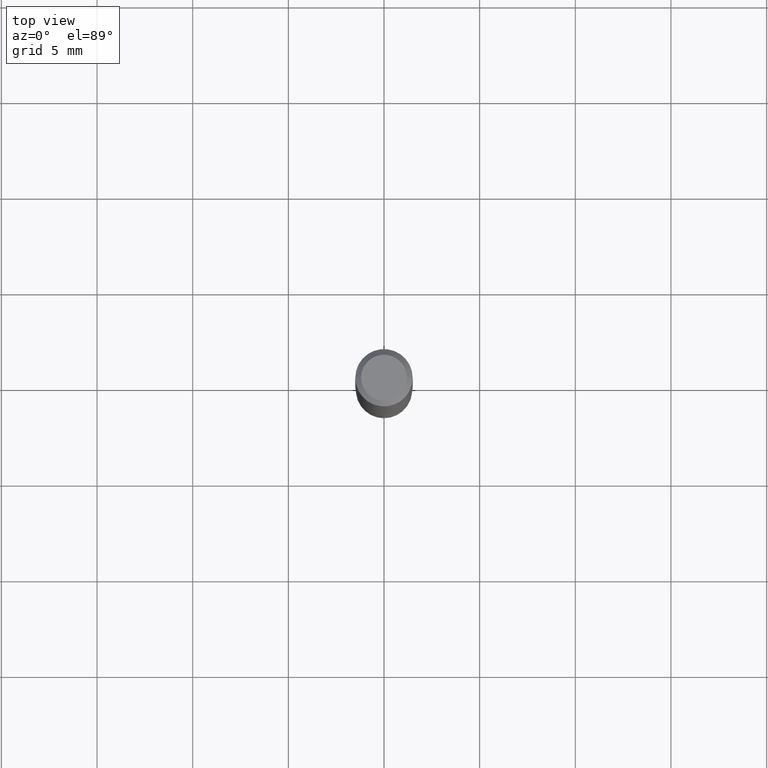
[diagram: clean part render]
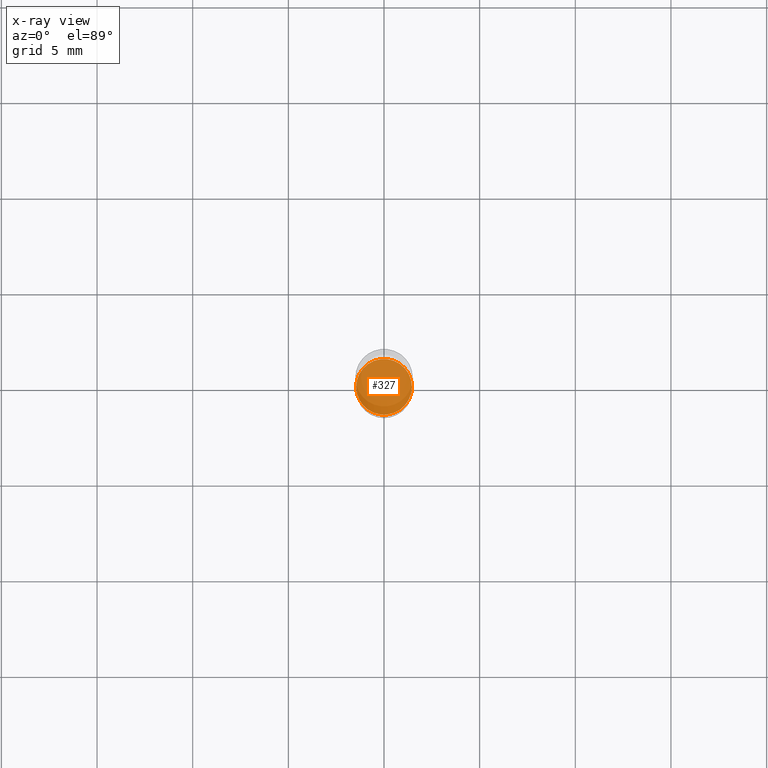
[diagram: x-ray — body ghosted, one internal face saturated and labeled with its STEP entity id]
A machine part, top view, then the same camera in x-ray: the body is ghosted and one INTERNAL B-rep face — a face not visible from any outside direction — is saturated and labeled: STEP entity #327.
In plain terms, the highlighted planar face has unit normal (-0, 0, 1).
Its self-contained STEP definition (entity closure, byte-faithful):
#7 = CARTESIAN_POINT ( 'NONE',  ( 2.676565608369632355E-29, -3.821426325363822773E-15, -1.094500000000000028 ) ) ;
#10 = CARTESIAN_POINT ( 'NONE',  ( 0.05734999999999999820, -4.221899234929130680E-15, -1.094500000000000028 ) ) ;
#15 = CIRCLE ( 'NONE', #374, 0.05734999999999999820 ) ;
#48 = DIRECTION ( 'NONE',  ( 1.000000000000000000, -6.982962677686264344E-15, 0.000000000000000000 ) ) ;
#63 = AXIS2_PLACEMENT_3D ( 'NONE', #205, #467, #48 ) ;
#66 = EDGE_LOOP ( 'NONE', ( #483, #184 ) ) ;
#74 = DIRECTION ( 'NONE',  ( 1.000000000000000000, -6.982962677686264344E-15, 0.000000000000000000 ) ) ;
#124 = CARTESIAN_POINT ( 'NONE',  ( 8.562420094366031687E-30, -6.428233325420959968E-15, -1.094500000000000028 ) ) ;
#184 = ORIENTED_EDGE ( 'NONE', *, *, #429, .F. ) ;
#205 = CARTESIAN_POINT ( 'NONE',  ( 2.676565608369632355E-29, -3.821426325363822773E-15, -1.094500000000000028 ) ) ;
#220 = CIRCLE ( 'NONE', #63, 0.05734999999999999820 ) ;
#239 = AXIS2_PLACEMENT_3D ( 'NONE', #124, #316, #433 ) ;
#259 = VERTEX_POINT ( 'NONE', #422 ) ;
#313 = DIRECTION ( 'NONE',  ( -2.445468806185136597E-29, 3.491481338843145583E-15, 1.000000000000000000 ) ) ;
#316 = DIRECTION ( 'NONE',  ( -2.438088387897960049E-29, 3.491481338843145188E-15, 1.000000000000000000 ) ) ;
#317 = EDGE_CURVE ( 'NONE', #339, #259, #15, .T. ) ;
#327 = ADVANCED_FACE ( 'NONE', ( #427 ), #469, .F. ) ;
#339 = VERTEX_POINT ( 'NONE', #10 ) ;
#374 = AXIS2_PLACEMENT_3D ( 'NONE', #7, #313, #74 ) ;
#422 = CARTESIAN_POINT ( 'NONE',  ( -0.05734999999999999820, -3.411280839231294424E-15, -1.094500000000000028 ) ) ;
#427 = FACE_OUTER_BOUND ( 'NONE', #66, .T. ) ;
#429 = EDGE_CURVE ( 'NONE', #259, #339, #220, .T. ) ;
#433 = DIRECTION ( 'NONE',  ( 1.000000000000000000, -6.982962677686265922E-15, 4.876176775795935793E-29 ) ) ;
#467 = DIRECTION ( 'NONE',  ( -2.445468806185136597E-29, 3.491481338843145583E-15, 1.000000000000000000 ) ) ;
#469 = PLANE ( 'NONE',  #239 ) ;
#483 = ORIENTED_EDGE ( 'NONE', *, *, #317, .F. ) ;